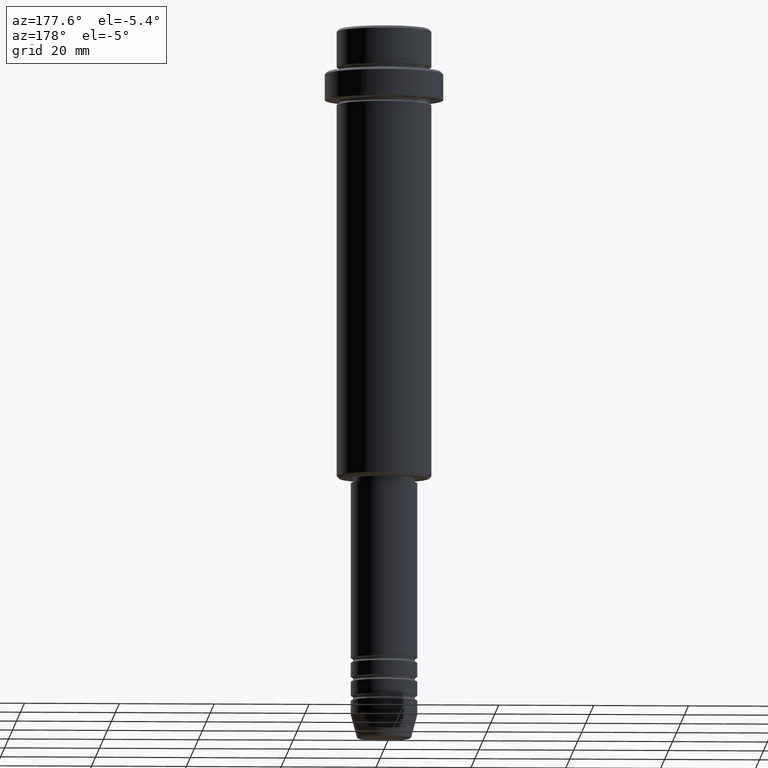
[diagram: clean part render]
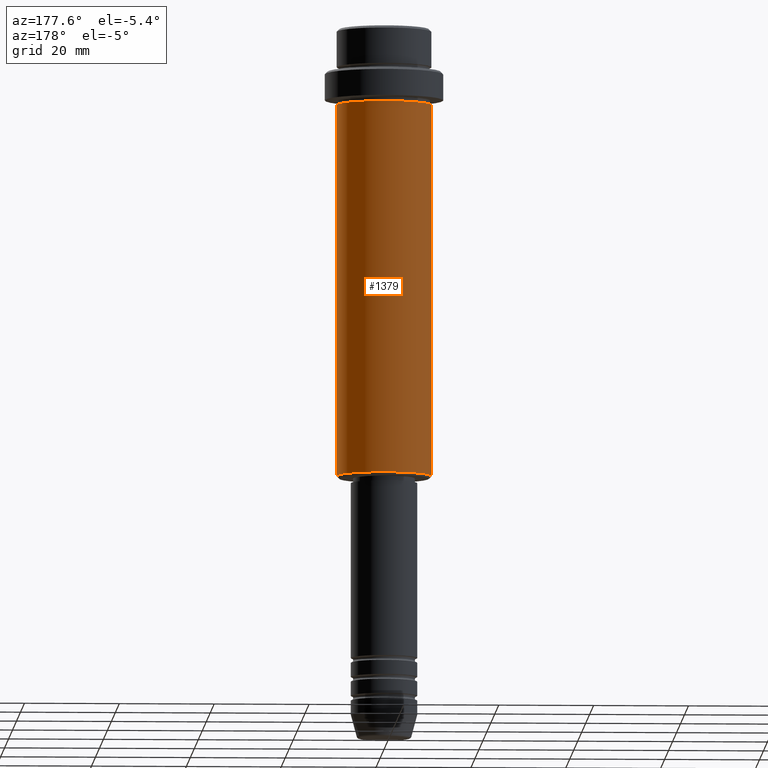
[diagram: same view with one face highlighted and labeled with its STEP entity id]
A machine part, auxiliary view. The second image highlights one B-rep face of the part: STEP entity #1379.
In plain terms, the highlighted cylindrical surface (partial cylindrical patch) has radius 10 mm, axis along (-0, -0, 1).
Its self-contained STEP definition (entity closure, byte-faithful):
#7 = DIRECTION ( 'NONE',  ( -0.000000000000000000, -0.000000000000000000, 1.000000000000000000 ) ) ;
#86 = AXIS2_PLACEMENT_3D ( 'NONE', #620, #189, #1406 ) ;
#138 = VERTEX_POINT ( 'NONE', #410 ) ;
#184 = DIRECTION ( 'NONE',  ( -0.000000000000000000, -0.000000000000000000, 1.000000000000000000 ) ) ;
#189 = DIRECTION ( 'NONE',  ( -0.000000000000000000, -0.000000000000000000, 1.000000000000000000 ) ) ;
#228 = VERTEX_POINT ( 'NONE', #1319 ) ;
#279 = CARTESIAN_POINT ( 'NONE',  ( 0.000000000000000000, 0.000000000000000000, -16.00000000000000000 ) ) ;
#338 = AXIS2_PLACEMENT_3D ( 'NONE', #279, #184, #715 ) ;
#402 = DIRECTION ( 'NONE',  ( -1.000000000000000000, 0.000000000000000000, 0.000000000000000000 ) ) ;
#409 = VECTOR ( 'NONE', #1343, 1000.000000000000000 ) ;
#410 = CARTESIAN_POINT ( 'NONE',  ( 10.00000000000000000, 0.000000000000000000, -94.49999999999998579 ) ) ;
#419 = DIRECTION ( 'NONE',  ( -0.000000000000000000, -0.000000000000000000, 1.000000000000000000 ) ) ;
#435 = VERTEX_POINT ( 'NONE', #896 ) ;
#588 = CIRCLE ( 'NONE', #1070, 10.00000000000000000 ) ;
#620 = CARTESIAN_POINT ( 'NONE',  ( 0.000000000000000000, 0.000000000000000000, 0.000000000000000000 ) ) ;
#689 = CARTESIAN_POINT ( 'NONE',  ( -10.00000000000000000, 1.224646799147353256E-15, 0.000000000000000000 ) ) ;
#705 = LINE ( 'NONE', #689, #409 ) ;
#715 = DIRECTION ( 'NONE',  ( 1.000000000000000000, 0.000000000000000000, 0.000000000000000000 ) ) ;
#774 = CIRCLE ( 'NONE', #338, 10.00000000000000000 ) ;
#792 = VECTOR ( 'NONE', #7, 1000.000000000000000 ) ;
#806 = ORIENTED_EDGE ( 'NONE', *, *, #1400, .F. ) ;
#829 = CYLINDRICAL_SURFACE ( 'NONE', #86, 10.00000000000000000 ) ;
#893 = EDGE_LOOP ( 'NONE', ( #1181, #1272, #806, #1320 ) ) ;
#896 = CARTESIAN_POINT ( 'NONE',  ( -10.00000000000000000, 1.224646799147353256E-15, -16.00000000000000000 ) ) ;
#939 = CARTESIAN_POINT ( 'NONE',  ( 10.00000000000000000, 0.000000000000000000, -16.00000000000000000 ) ) ;
#988 = CARTESIAN_POINT ( 'NONE',  ( 10.00000000000000000, 0.000000000000000000, 0.000000000000000000 ) ) ;
#991 = VERTEX_POINT ( 'NONE', #939 ) ;
#1070 = AXIS2_PLACEMENT_3D ( 'NONE', #1176, #419, #402 ) ;
#1140 = EDGE_CURVE ( 'NONE', #138, #991, #1207, .T. ) ;
#1176 = CARTESIAN_POINT ( 'NONE',  ( 0.000000000000000000, 0.000000000000000000, -94.49999999999998579 ) ) ;
#1181 = ORIENTED_EDGE ( 'NONE', *, *, #1369, .T. ) ;
#1207 = LINE ( 'NONE', #988, #792 ) ;
#1248 = EDGE_CURVE ( 'NONE', #228, #435, #705, .T. ) ;
#1267 = FACE_OUTER_BOUND ( 'NONE', #893, .T. ) ;
#1272 = ORIENTED_EDGE ( 'NONE', *, *, #1248, .T. ) ;
#1319 = CARTESIAN_POINT ( 'NONE',  ( -10.00000000000000000, 1.224646799147353256E-15, -94.49999999999998579 ) ) ;
#1320 = ORIENTED_EDGE ( 'NONE', *, *, #1140, .F. ) ;
#1343 = DIRECTION ( 'NONE',  ( -0.000000000000000000, -0.000000000000000000, 1.000000000000000000 ) ) ;
#1369 = EDGE_CURVE ( 'NONE', #138, #228, #588, .T. ) ;
#1379 = ADVANCED_FACE ( 'NONE', ( #1267 ), #829, .T. ) ;
#1400 = EDGE_CURVE ( 'NONE', #991, #435, #774, .T. ) ;
#1406 = DIRECTION ( 'NONE',  ( 1.000000000000000000, 0.000000000000000000, 0.000000000000000000 ) ) ;